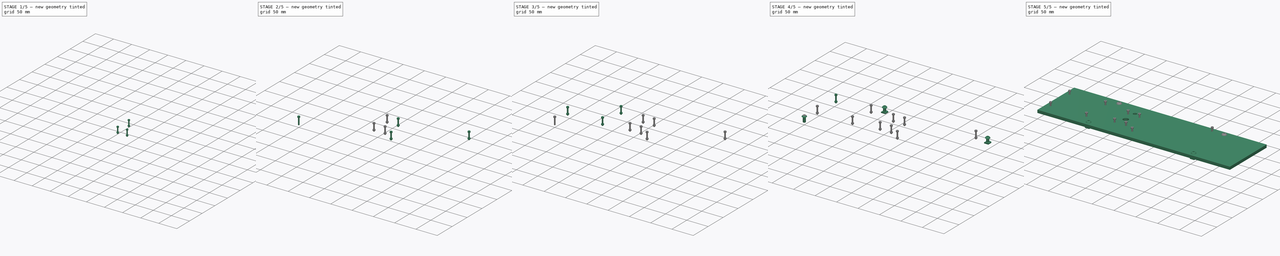
[diagram: build sequence overview — one tinted view per stage of 5, left to right]
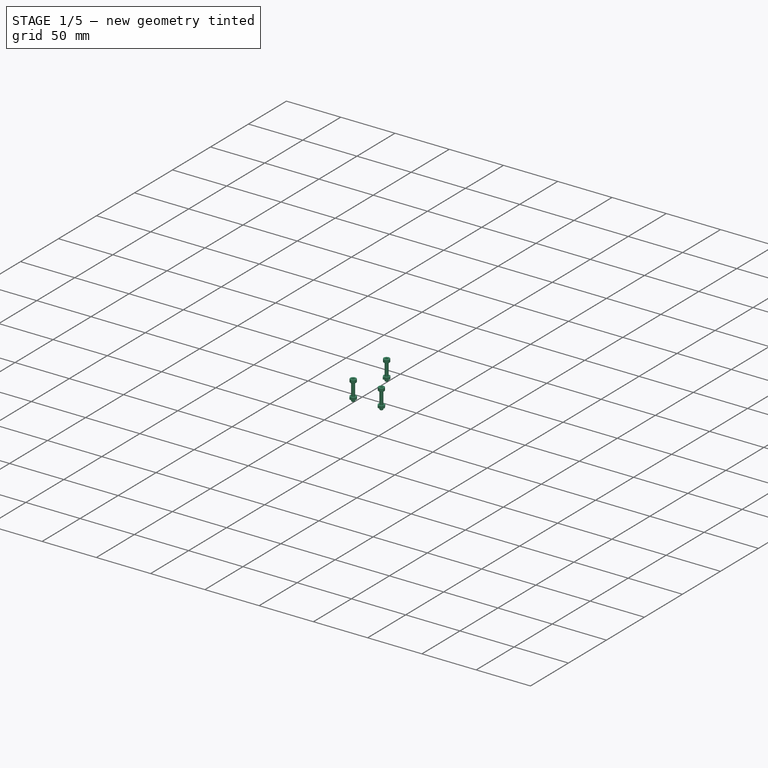
[diagram: stage 1 of 5 — iso view after this stage's code; geometry added in this stage tinted green]
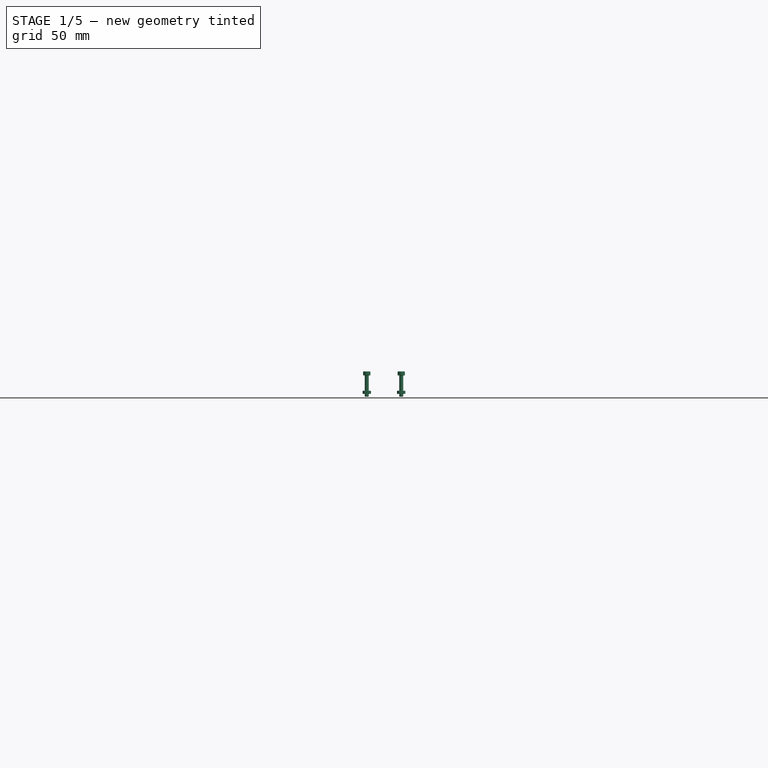
[diagram: stage 1 of 5 — front view after this stage's code; geometry added in this stage tinted green]
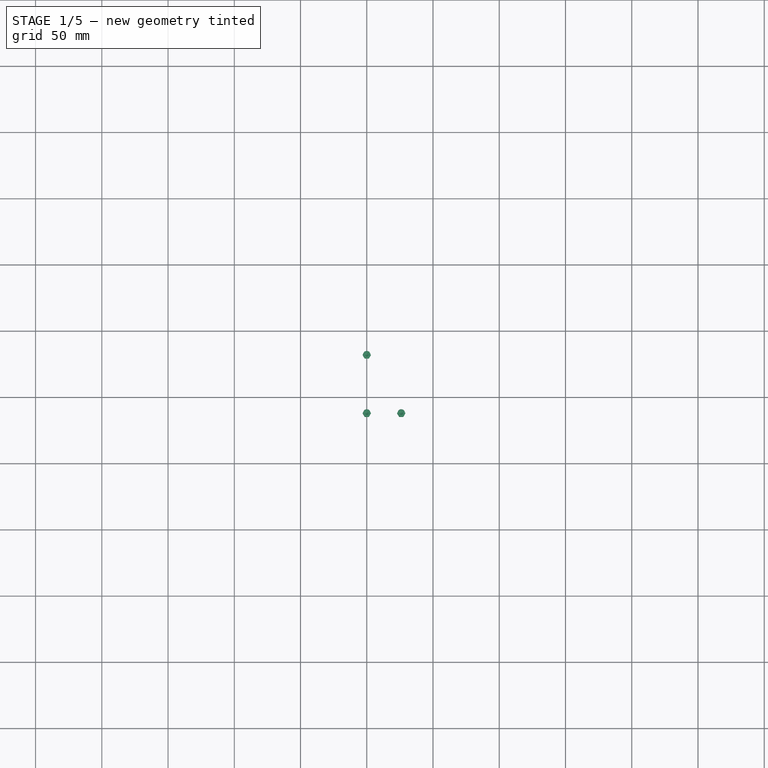
[diagram: stage 1 of 5 — top view after this stage's code; geometry added in this stage tinted green]
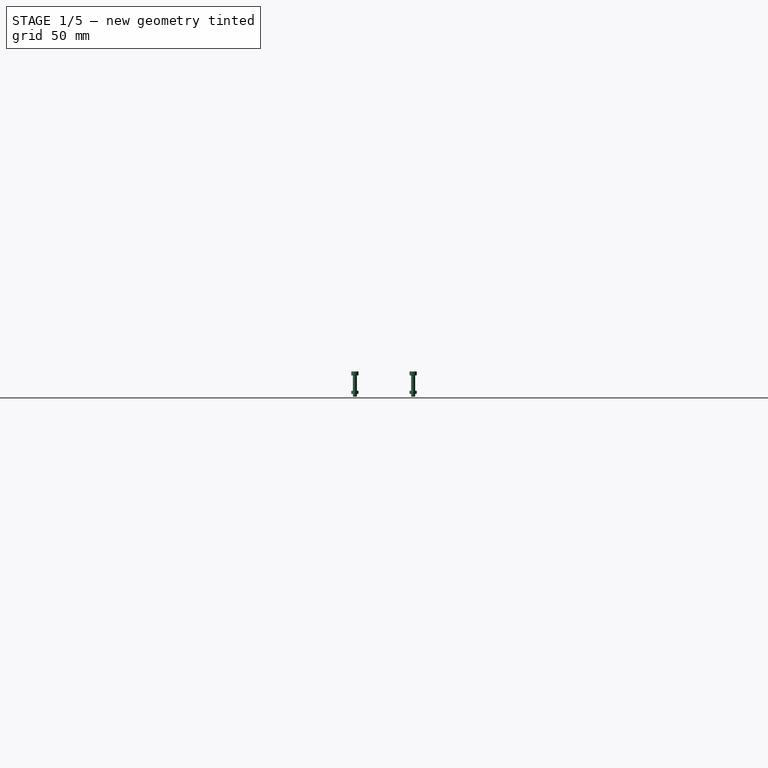
[diagram: stage 1 of 5 — right view after this stage's code; geometry added in this stage tinted green]
FCSTD DOCUMENT  (FreeCAD 0.19R23964 (Git))
Label: ctrlmount2f
License: All rights reserved
LicenseURL: http://en.wikipedia.org/wiki/All_rights_reserved
objects: Part::Feature×19, Part::FeaturePython×14, Part::Compound×14, Sketcher::SketchObject×4, PartDesign::Pocket×3, PartDesign::Pad×1, PartDesign::Body×1
note: 60 computed .brp shape members not serialized (recipe doc carries the construction recipe); baked Part::Feature solids carry a one-line shape summary decoded from their .brp

FEATURE [Part::FeaturePython] Screw011  label="M3x16-Screw007"  # Fasteners workbench fastener (typed FeaturePython)
  diameter = 4
  invert = false
  length = 6
  matchOuter = false
  offset = 0
  thread = false
  type = 15
FEATURE [Part::Feature] Nut008  label="M3-Nut008"
  Placement = pos=(0,0,-14) rot=(0,0,1;0rad)
  shape: bbox 6.351 x 6.351 x 2.4 mm, 25 faces (baked)
FEATURE [Part::Compound] Compound011  label="m3x16cylscrewnut007"
  Links = -> [Screw011,Nut008]
  Placement = pos=(150,82,12) rot=(0,0,1;0rad)
FEATURE [Part::FeaturePython] Screw012  label="M3x16-Screw008"  # Fasteners workbench fastener (typed FeaturePython)
  diameter = 4
  invert = false
  length = 6
  matchOuter = false
  offset = 0
  thread = false
  type = 15
FEATURE [Part::Feature] Nut009  label="M3-Nut009"
  Placement = pos=(0,0,-14) rot=(0,0,1;0rad)
  shape: bbox 6.351 x 6.351 x 2.4 mm, 25 faces (baked)
FEATURE [Part::Compound] Compound012  label="m3x16cylscrewnut008"
  Links = -> [Screw012,Nut009]
  Placement = pos=(150,38,12) rot=(0,0,1;0rad)
FEATURE [Part::FeaturePython] Screw013  label="M3x16-Screw009"  # Fasteners workbench fastener (typed FeaturePython)
  diameter = 4
  invert = false
  length = 6
  matchOuter = false
  offset = 0
  thread = false
  type = 15
FEATURE [Part::Feature] Nut010  label="M3-Nut010"
  Placement = pos=(0,0,-14) rot=(0,0,1;0rad)
  shape: bbox 6.351 x 6.351 x 2.4 mm, 25 faces (baked)
FEATURE [Part::Compound] Compound013  label="m3x16cylscrewnut009"
  Links = -> [Screw013,Nut010]
  Placement = pos=(176,38,12) rot=(0,0,1;0rad)
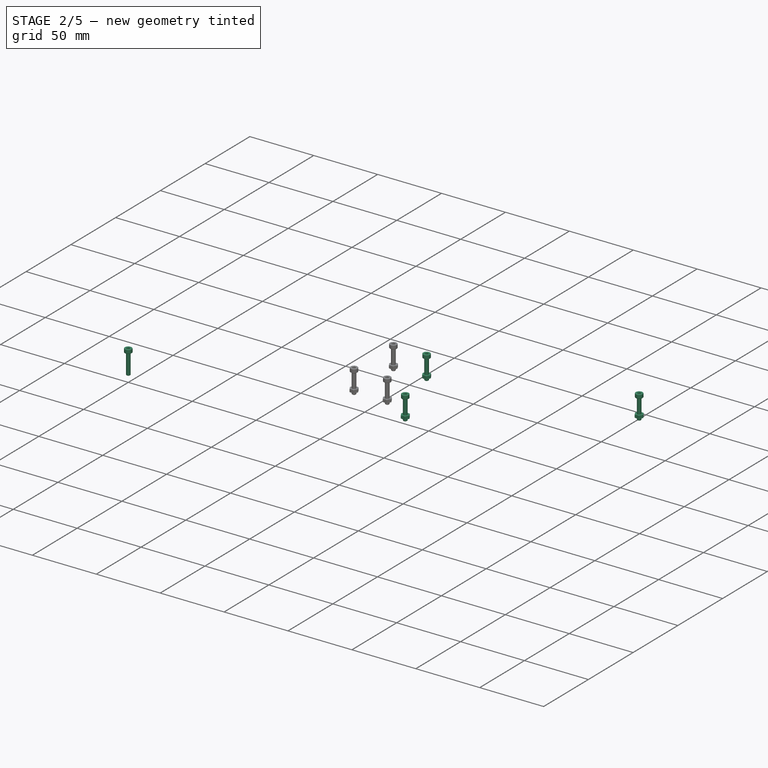
[diagram: stage 2 of 5 — iso view after this stage's code; geometry added in this stage tinted green]
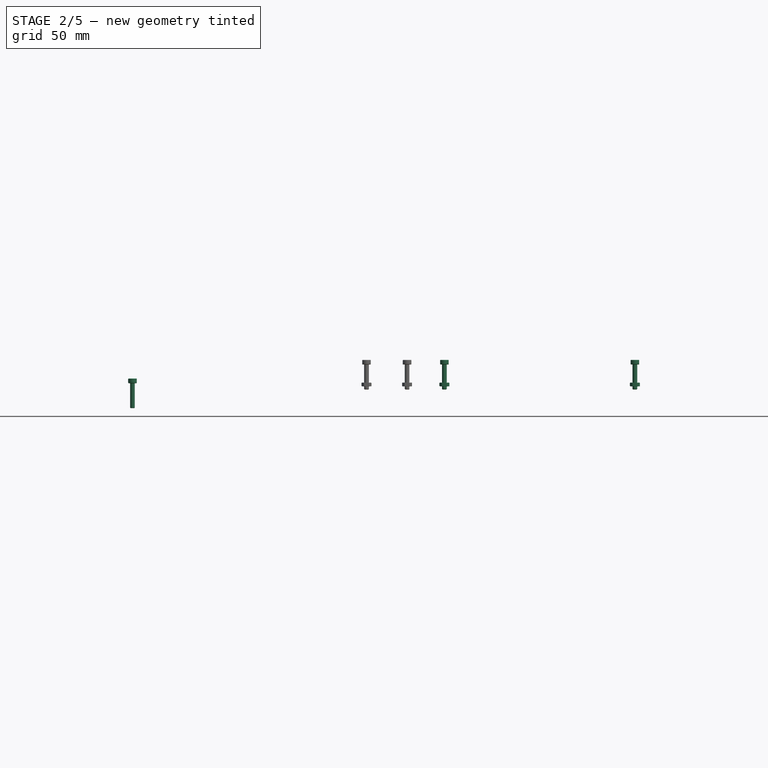
[diagram: stage 2 of 5 — front view after this stage's code; geometry added in this stage tinted green]
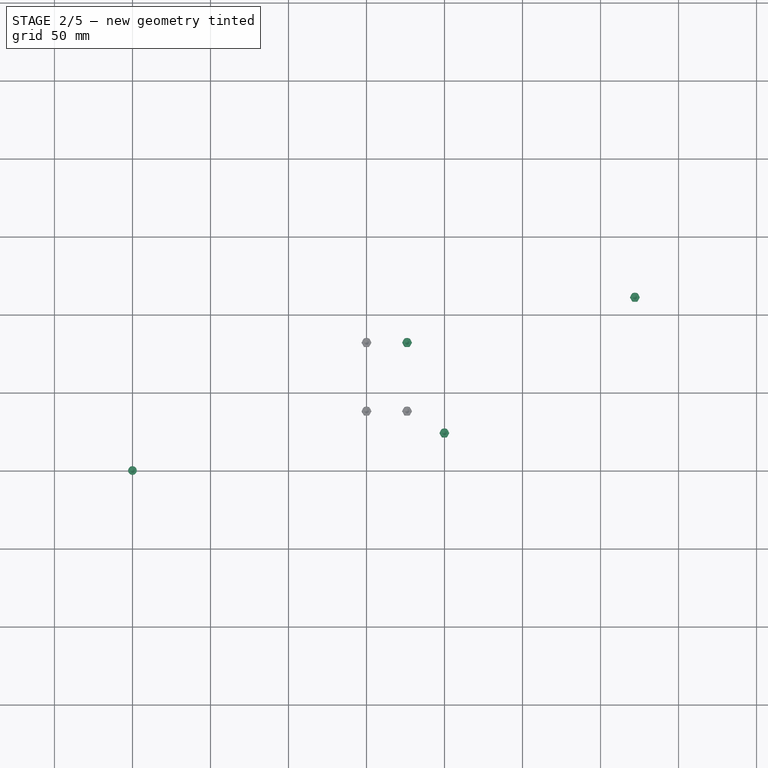
[diagram: stage 2 of 5 — top view after this stage's code; geometry added in this stage tinted green]
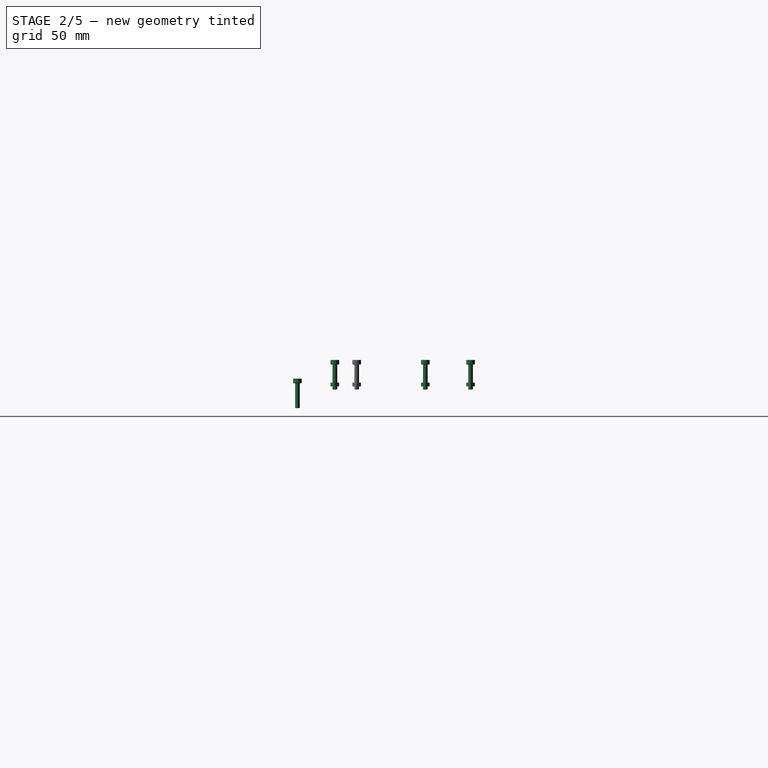
[diagram: stage 2 of 5 — right view after this stage's code; geometry added in this stage tinted green]
FEATURE [Part::FeaturePython] Screw007  label="M3x16-Screw003"  # Fasteners workbench fastener (typed FeaturePython)
  diameter = 4
  invert = false
  length = 6
  matchOuter = false
  offset = 0
  thread = false
  type = 15
FEATURE [Part::Feature] Nut005  label="M3-Nut005"
  Placement = pos=(0,0,-14) rot=(0,0,1;0rad)
  shape: bbox 6.351 x 6.351 x 2.4 mm, 25 faces (baked)
FEATURE [Part::FeaturePython] Screw008  label="M3x16-Screw004"  # Fasteners workbench fastener (typed FeaturePython)
  diameter = 4
  invert = false
  length = 6
  matchOuter = false
  offset = 0
  thread = false
  type = 15
FEATURE [Part::Compound] Compound008  label="m3x16cylscrewnut004"
  Links = -> [Screw008,Nut005]
  Placement = pos=(322,111,12) rot=(0,0,1;0rad)
FEATURE [Part::FeaturePython] Screw009  label="M3x16-Screw005"  # Fasteners workbench fastener (typed FeaturePython)
  diameter = 4
  invert = false
  length = 6
  matchOuter = false
  offset = 0
  thread = false
  type = 15
FEATURE [Part::Feature] Nut006  label="M3-Nut006"
  Placement = pos=(0,0,-14) rot=(0,0,1;0rad)
  shape: bbox 6.351 x 6.351 x 2.4 mm, 25 faces (baked)
FEATURE [Part::Compound] Compound009  label="m3x16cylscrewnut005"
  Links = -> [Screw009,Nut006]
  Placement = pos=(199.9,24,12) rot=(0,0,1;0rad)
FEATURE [Part::FeaturePython] Screw010  label="M3x16-Screw006"  # Fasteners workbench fastener (typed FeaturePython)
  diameter = 4
  invert = false
  length = 6
  matchOuter = false
  offset = 0
  thread = false
  type = 15
FEATURE [Part::Feature] Nut007  label="M3-Nut007"
  Placement = pos=(0,0,-14) rot=(0,0,1;0rad)
  shape: bbox 6.351 x 6.351 x 2.4 mm, 25 faces (baked)
FEATURE [Part::Compound] Compound010  label="m3x16cylscrewnut006"
  Links = -> [Screw010,Nut007]
  Placement = pos=(176,82,12) rot=(0,0,1;0rad)
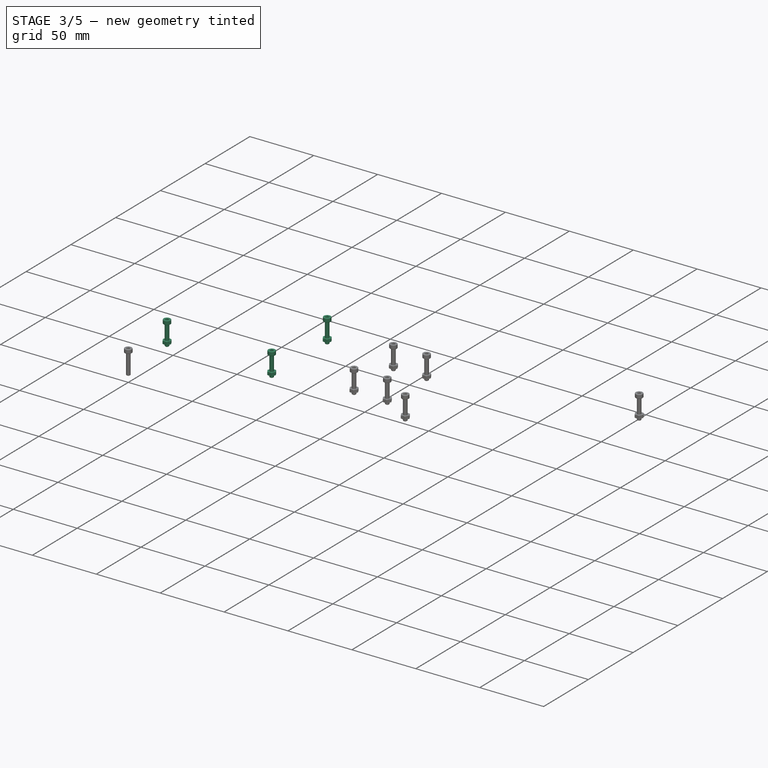
[diagram: stage 3 of 5 — iso view after this stage's code; geometry added in this stage tinted green]
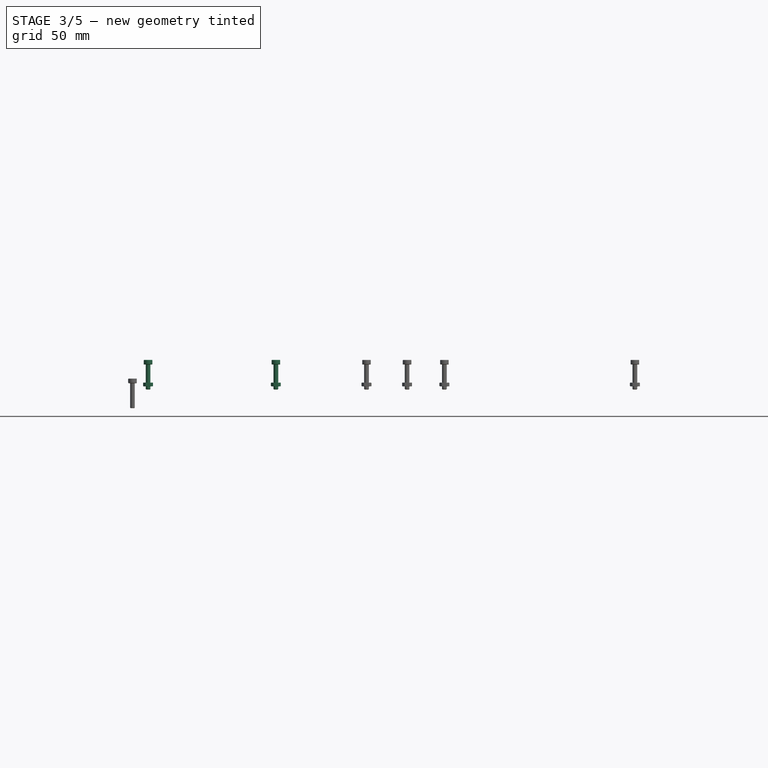
[diagram: stage 3 of 5 — front view after this stage's code; geometry added in this stage tinted green]
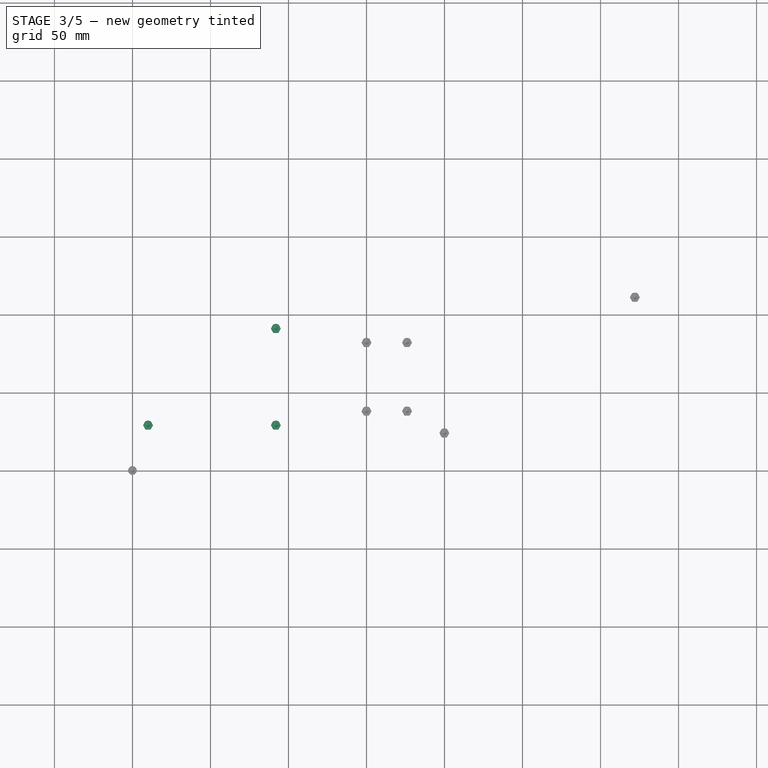
[diagram: stage 3 of 5 — top view after this stage's code; geometry added in this stage tinted green]
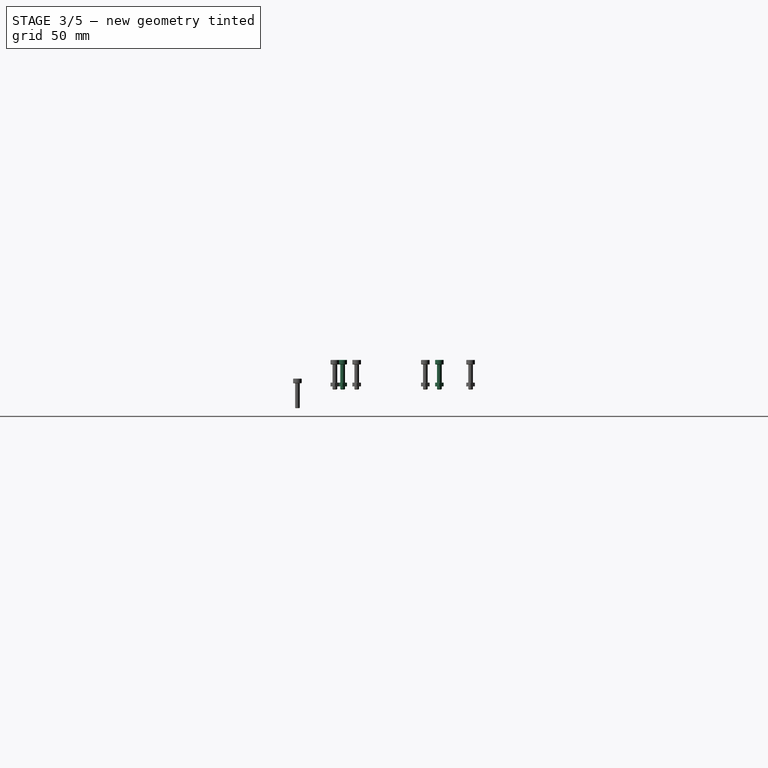
[diagram: stage 3 of 5 — right view after this stage's code; geometry added in this stage tinted green]
FEATURE [Part::Feature] Nut001  label="M3-Nut001"
  Placement = pos=(0,0,-14) rot=(0,0,1;0rad)
  shape: bbox 6.351 x 6.351 x 2.4 mm, 25 faces (baked)
FEATURE [Part::FeaturePython] Screw004  label="M3x16-Screw"  # Fasteners workbench fastener (typed FeaturePython)
  diameter = 4
  invert = false
  length = 6
  matchOuter = false
  offset = 0
  thread = false
  type = 15
FEATURE [Part::FeaturePython] Screw005  label="M3x16-Screw001"  # Fasteners workbench fastener (typed FeaturePython)
  diameter = 4
  invert = false
  length = 6
  matchOuter = false
  offset = 0
  thread = false
  type = 15
FEATURE [Part::Feature] Nut002  label="M3-Nut002"
  Placement = pos=(0,0,-14) rot=(0,0,1;0rad)
  shape: bbox 6.351 x 6.351 x 2.4 mm, 25 faces (baked)
FEATURE [Part::Compound] Compound005  label="m3x16cylscrewnut001"
  Links = -> [Screw005,Nut002]
  Placement = pos=(91.9,91,12) rot=(0,0,1;0rad)
FEATURE [Part::Feature] Nut003  label="M3-Nut003"
  Placement = pos=(0,0,-14) rot=(0,0,1;0rad)
  shape: bbox 6.351 x 6.351 x 2.4 mm, 25 faces (baked)
FEATURE [Part::FeaturePython] Screw006  label="M3x16-Screw002"  # Fasteners workbench fastener (typed FeaturePython)
  diameter = 4
  invert = false
  length = 6
  matchOuter = false
  offset = 0
  thread = false
  type = 15
FEATURE [Part::Compound] Compound006  label="m3x16cylscrewnut002"
  Links = -> [Screw006,Nut003]
  Placement = pos=(91.9,29,12) rot=(0,0,1;0rad)
FEATURE [Part::Feature] Nut004  label="M3-Nut004"
  Placement = pos=(0,0,-14) rot=(0,0,1;0rad)
  shape: bbox 6.351 x 6.351 x 2.4 mm, 25 faces (baked)
FEATURE [Part::Compound] Compound007  label="m3x16cylscrewnut003"
  Links = -> [Screw007,Nut004]
  Placement = pos=(10,29,12) rot=(0,0,1;0rad)
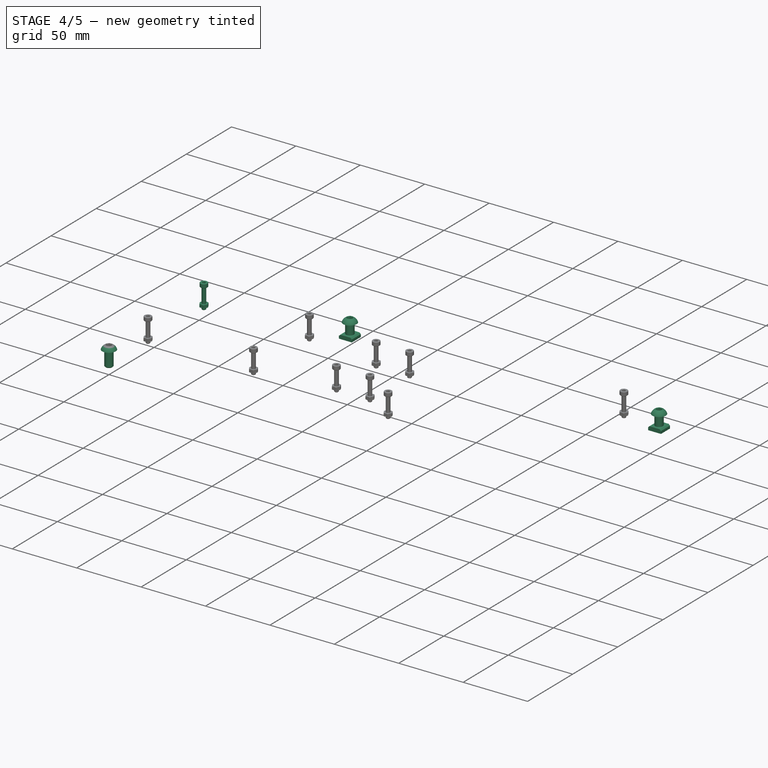
[diagram: stage 4 of 5 — iso view after this stage's code; geometry added in this stage tinted green]
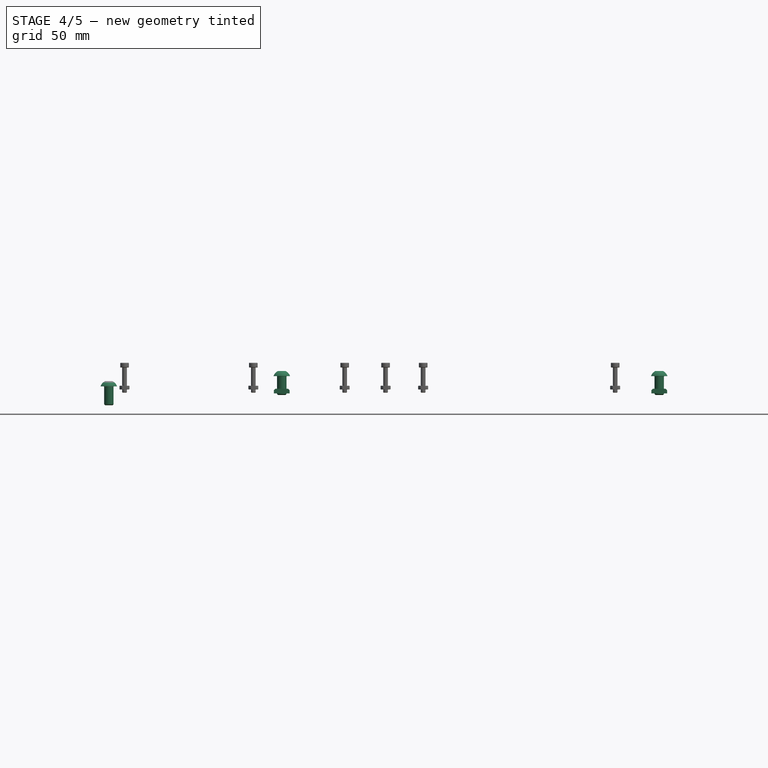
[diagram: stage 4 of 5 — front view after this stage's code; geometry added in this stage tinted green]
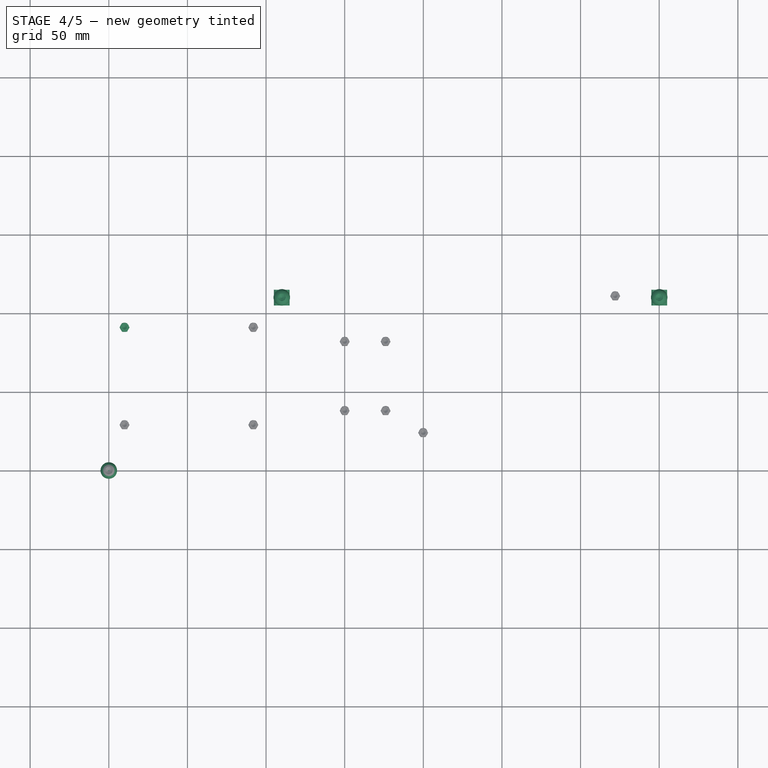
[diagram: stage 4 of 5 — top view after this stage's code; geometry added in this stage tinted green]
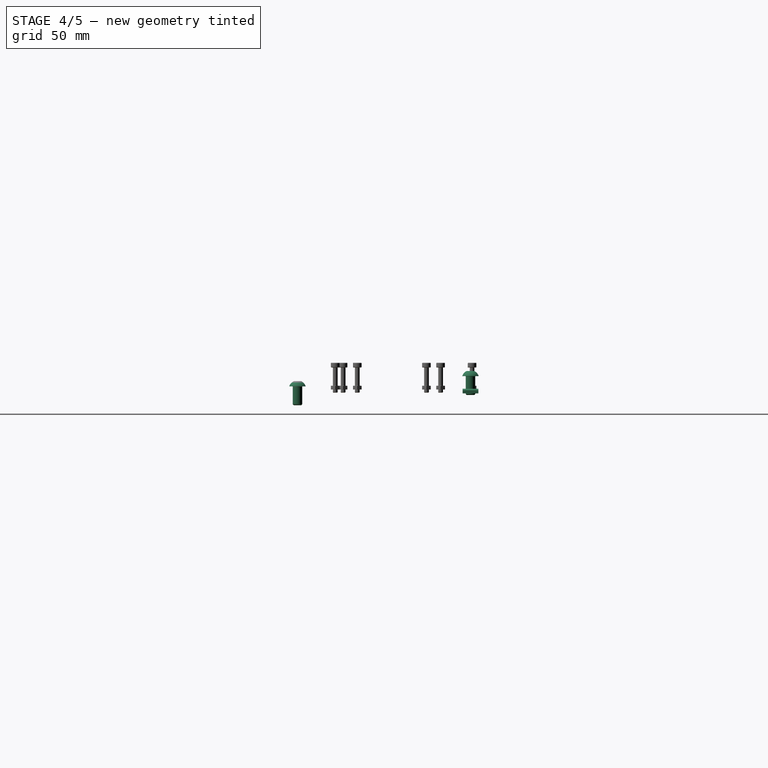
[diagram: stage 4 of 5 — right view after this stage's code; geometry added in this stage tinted green]
FEATURE [PartDesign::Body] Body
  Group = -> [Sketch,Pad,Sketch001,Pocket,Sketch002,Pocket001,Sketch003,Pocket002]
  Origin = -> Origin
  Tip = -> Pocket002
FEATURE [Part::Feature] Feature001  label="nano shield002"
  Placement = pos=(34,80,4.65) rot=(0,0.707107,0.707107;3.14159rad)
  shape: bbox 71.67 x 58.17 x 25.52 mm, 4898 faces, 174 solids (baked)
FEATURE [Part::Feature] Fillet001  label="revctrl"
  Placement = pos=(147,35,9.2) rot=(0,0,1;0rad)
  shape: bbox 32 x 68 x 15.79 mm, 53 faces (baked)
FEATURE [Part::Feature] Pad001  label="ks0288"
  Placement = pos=(5.8,25.9,10) rot=(0,0,1;0rad)
  shape: bbox 90.4 x 70.5 x 1.7 mm, 10 faces (baked)
FEATURE [Part::Feature] Pad002  label="ps500wspindel_51"
  Placement = pos=(194.85,16.75,6.5) rot=(0,0,1;0rad)
  shape: bbox 130 x 98 x 51 mm, 8 faces (baked)
FEATURE [Part::Feature] Pad003  label="ps500wspindel_1.5"
  Placement = pos=(194.85,16.75,6.5) rot=(0,0,1;0rad)
  shape: bbox 130 x 98 x 1.5 mm, 8 faces (baked)
FEATURE [Part::Feature] Body004  label="M6nutplate003"
  Placement = pos=(-5,-5,-11) rot=(0,0,1;0rad)
  shape: bbox 10 x 10 x 3 mm, 9 faces (baked)
FEATURE [Part::FeaturePython] Screw001  label="M6x12-Screw001"  # Fasteners workbench fastener (typed FeaturePython)
  diameter = 4
  invert = false
  length = 1
  matchOuter = false
  offset = 0
  thread = false
  type = 20
FEATURE [Part::FeaturePython] Screw002  label="M6x12-Screw002"  # Fasteners workbench fastener (typed FeaturePython)
  diameter = 4
  invert = false
  length = 1
  matchOuter = false
  offset = 0
  thread = false
  type = 20
FEATURE [Part::FeaturePython] Screw003  label="M6x12-Screw003"  # Fasteners workbench fastener (typed FeaturePython)
  diameter = 4
  invert = false
  length = 1
  matchOuter = false
  offset = 0
  thread = false
  type = 20
FEATURE [Part::Feature] Body003  label="M6nutplate002"
  Placement = pos=(-5,-5,-11) rot=(0,0,1;0rad)
  shape: bbox 10 x 10 x 3 mm, 9 faces (baked)
FEATURE [Part::Feature] Body002  label="M6nutplate001"
  Placement = pos=(-5,-5,-11) rot=(0,0,1;0rad)
  shape: bbox 10 x 10 x 3 mm, 9 faces (baked)
FEATURE [Part::Feature] Body001  label="M6nutplate"
  Placement = pos=(-5,-5,-11) rot=(0,0,1;0rad)
  shape: bbox 10 x 10 x 3 mm, 9 faces (baked)
FEATURE [Part::Compound] Compound002  label="m6x12screwnut002"
  Links = -> [Screw002,Body003]
  Placement = pos=(350,110,6.5) rot=(0,0,1;0rad)
FEATURE [Part::FeaturePython] Screw  label="M6x12-Screw"  # Fasteners workbench fastener (typed FeaturePython)
  diameter = 4
  invert = false
  length = 1
  matchOuter = false
  offset = 0
  thread = false
  type = 20
FEATURE [Part::Compound] Compound001  label="m6x12screwnut001"
  Links = -> [Screw001,Body002]
  Placement = pos=(110,110,6.5) rot=(0,0,1;0rad)
FEATURE [Part::Compound] Compound004  label="m3x16cylscrewnut"
  Links = -> [Screw004,Nut001]
  Placement = pos=(10,91,12) rot=(0,0,1;0rad)
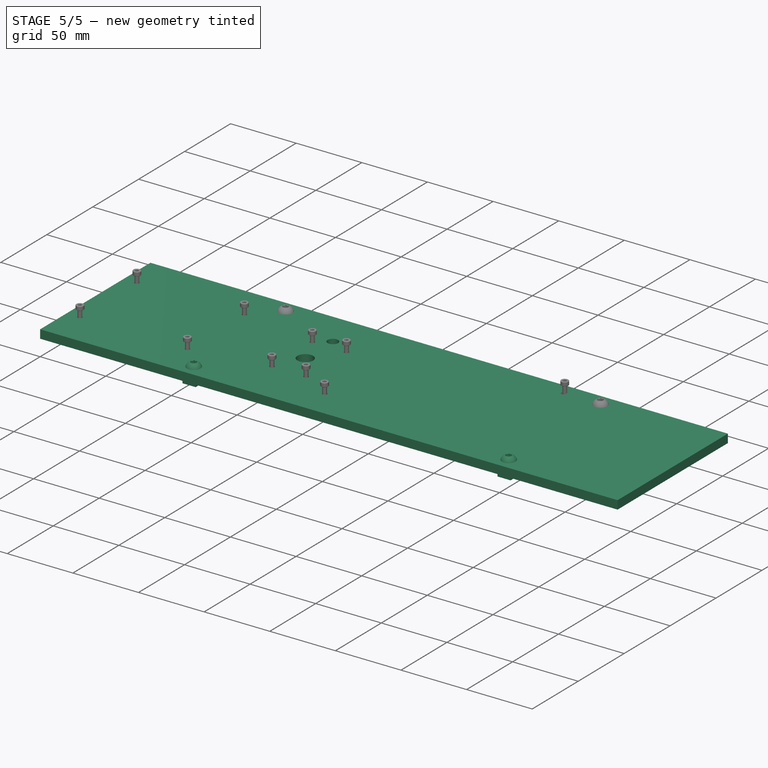
[diagram: stage 5 of 5 — iso view after this stage's code; geometry added in this stage tinted green]
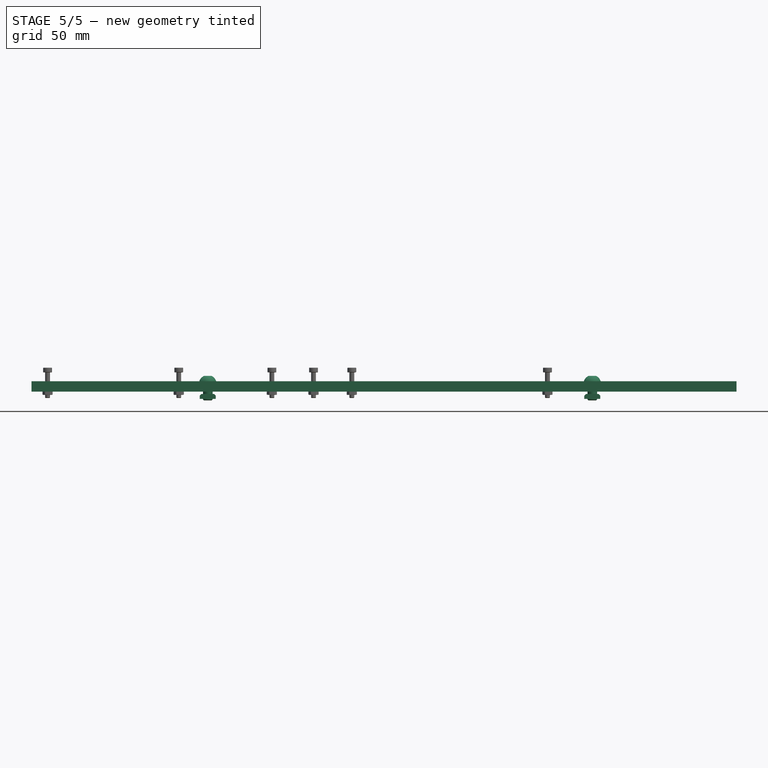
[diagram: stage 5 of 5 — front view after this stage's code; geometry added in this stage tinted green]
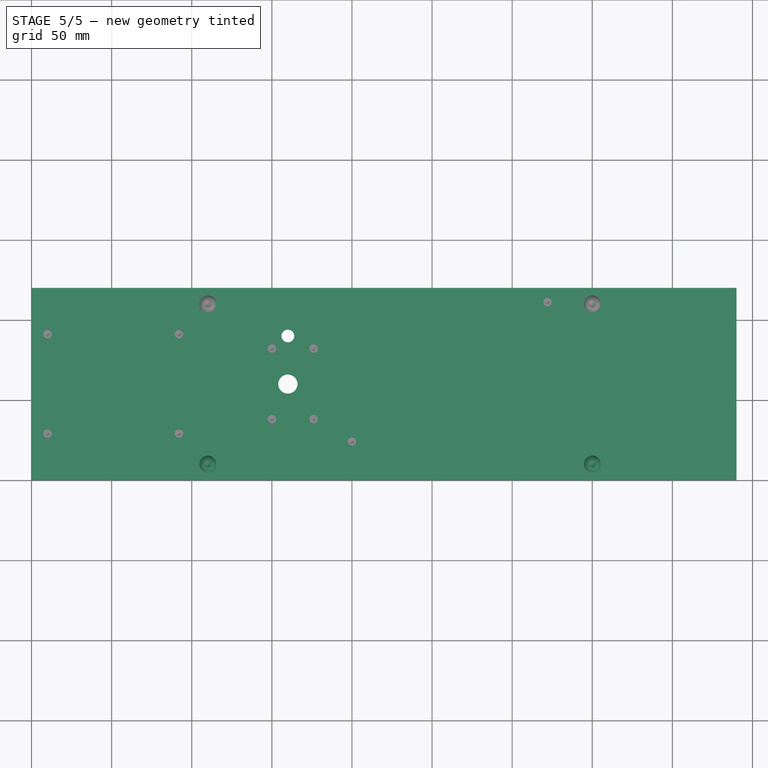
[diagram: stage 5 of 5 — top view after this stage's code; geometry added in this stage tinted green]
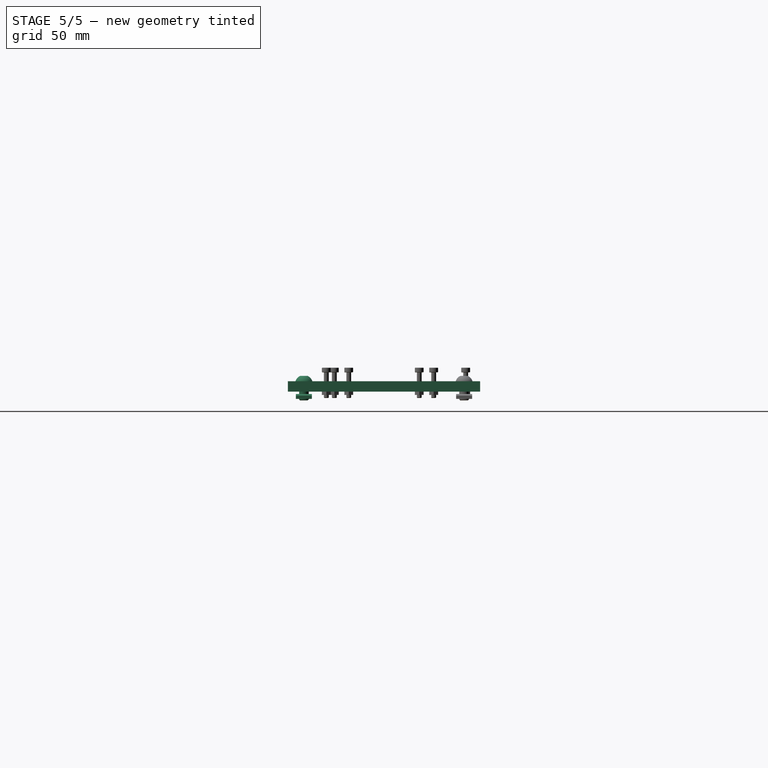
[diagram: stage 5 of 5 — right view after this stage's code; geometry added in this stage tinted green]
FEATURE [Sketcher::SketchObject] Sketch  label="sketch_panelmount"
  FullyConstrained = true
  MapMode = 5
  Support = -> [XY_Plane]
  sketch-geometry (8):
    g0: LineSegment StartX=0 StartY=120 StartZ=0 EndX=440 EndY=120 EndZ=0
    g1: LineSegment StartX=440 StartY=120 StartZ=0 EndX=440 EndY=0 EndZ=0
    g2: LineSegment StartX=440 StartY=0 StartZ=0 EndX=0 EndY=0 EndZ=0
    g3: LineSegment StartX=0 StartY=0 StartZ=0 EndX=0 EndY=120 EndZ=0
    g4: Circle CenterX=110 CenterY=110 CenterZ=0 NormalX=0 NormalY=0 NormalZ=1 AngleXU=0 Radius=3.3
    g5: Circle CenterX=110 CenterY=10 CenterZ=0 NormalX=0 NormalY=0 NormalZ=1 AngleXU=0 Radius=3.3
    g6: Circle CenterX=350 CenterY=110 CenterZ=0 NormalX=0 NormalY=0 NormalZ=1 AngleXU=0 Radius=3.3
    g7: Circle CenterX=350 CenterY=10 CenterZ=0 NormalX=0 NormalY=0 NormalZ=1 AngleXU=0 Radius=3.3
  constraints (23):
    c: Coincident(g0,g1)
    c: Coincident(g1,g2)
    c: Coincident(g2,g3)
    c: Coincident(g3,g0)
    c: Horizontal(g0)
    c: Horizontal(g2)
    c: Vertical(g1)
    c: Vertical(g3)
    c: Coincident(g2,g-1)
    c: DistanceX(g0,g0) = 440
    c: DistanceY(g3,g3) = 120
    c: DistanceY(g2,g5) = 10
    c: DistanceX(g5,g4) = 0
    c: DistanceY(g5,g4) = 100
    c: DistanceY(g6,g4) = 0
    c: DistanceY(g5,g7) = 0
    c: DistanceX(g6,g7) = 0
    c: DistanceX(g6,g0) = 90
    c: Radius(g4) = 3.3
    c: Equal(g4,g5)
    c: Equal(g4,g7)
    c: Equal(g4,g6)
    c: DistanceX(g2,g5) = 110
FEATURE [PartDesign::Pad] Pad
  Direction = (1,1,1)
  Length = 6.5
  Length2 = 100
  Profile = -> Sketch
  Type = 0
FEATURE [Sketcher::SketchObject] Sketch001  label="Sketch001_ks0288"
  FullyConstrained = true
  MapMode = 5
  Placement = pos=(0,0,6.5) rot=(0,0,1;0rad)
  Support = -> [Pad]
  sketch-geometry (4):
    g0: Circle CenterX=10 CenterY=91 CenterZ=0 NormalX=0 NormalY=0 NormalZ=1 AngleXU=0 Radius=1.75
    g1: Circle CenterX=91.9 CenterY=91 CenterZ=0 NormalX=0 NormalY=0 NormalZ=1 AngleXU=0 Radius=1.75
    g2: Circle CenterX=10 CenterY=29 CenterZ=0 NormalX=0 NormalY=0 NormalZ=1 AngleXU=0 Radius=1.75
    g3: Circle CenterX=91.9 CenterY=29 CenterZ=0 NormalX=0 NormalY=0 NormalZ=1 AngleXU=0 Radius=1.75
  constraints (12):
    c: DistanceX(g-1,g2) = 10
    c: DistanceY(g-1,g2) = 29
    c: DistanceX(g2,g0) = 0
    c: DistanceY(g2,g0) = 62
    c: DistanceX(g0,g1) = 81.9
    c: DistanceY(g1,g0) = 0
    c: DistanceX(g1,g3) = 0
    c: DistanceY(g2,g3) = 0
    c: Radius(g2) = 1.75
    c: Equal(g2,g0)
    c: Equal(g2,g1)
    c: Equal(g2,g3)
FEATURE [PartDesign::Pocket] Pocket
  BaseFeature = -> Pad
  Length = 7
  Length2 = 100
  Profile = -> Sketch001
  Type = 0
FEATURE [Sketcher::SketchObject] Sketch002  label="_revctrl_60w"
  FullyConstrained = true
  MapMode = 5
  Placement = pos=(0,0,6.5) rot=(0,0,1;0rad)
  Support = -> [Pocket]
  sketch-geometry (4):
    g0: Circle CenterX=150 CenterY=82 CenterZ=0 NormalX=0 NormalY=0 NormalZ=1 AngleXU=0 Radius=1.75
    g1: Circle CenterX=176 CenterY=82 CenterZ=0 NormalX=0 NormalY=0 NormalZ=1 AngleXU=0 Radius=1.75
    g2: Circle CenterX=150 CenterY=38 CenterZ=0 NormalX=0 NormalY=0 NormalZ=1 AngleXU=0 Radius=1.75
    g3: Circle CenterX=176 CenterY=38 CenterZ=0 NormalX=0 NormalY=0 NormalZ=1 AngleXU=0 Radius=1.75
  constraints (12):
    c: DistanceX(g-1,g2) = 150
    c: DistanceY(g-1,g2) = 38
    c: DistanceY(g2,g3) = 0
    c: DistanceX(g2,g3) = 26
    c: DistanceY(g2,g0) = 44
    c: DistanceX(g2,g0) = 0
    c: DistanceY(g0,g1) = 0
    c: DistanceX(g3,g1) = 0
    c: Radius(g0) = 1.75
    c: Equal(g0,g1)
    c: Equal(g0,g3)
    c: Equal(g0,g2)
FEATURE [PartDesign::Pocket] Pocket001
  BaseFeature = -> Pocket
  Length = 7
  Length2 = 100
  Profile = -> Sketch002
  Type = 0
FEATURE [Sketcher::SketchObject] Sketch003  label="sketch_ps500w"
  FullyConstrained = true
  MapMode = 5
  Placement = pos=(0,0,6.5) rot=(0,0,1;0rad)
  Support = -> [Pocket001]
  sketch-geometry (4):
    g0: Circle CenterX=200 CenterY=24 CenterZ=0 NormalX=0 NormalY=0 NormalZ=1 AngleXU=0 Radius=1.75
    g1: Circle CenterX=321.85 CenterY=110 CenterZ=0 NormalX=0 NormalY=0 NormalZ=1 AngleXU=0 Radius=1.75
    g2: Circle CenterX=160 CenterY=60 CenterZ=0 NormalX=0 NormalY=0 NormalZ=1 AngleXU=0 Radius=6
    g3: Circle CenterX=160 CenterY=90 CenterZ=0 NormalX=0 NormalY=0 NormalZ=1 AngleXU=0 Radius=4
  constraints (12):
    c: DistanceY(g-1,g1) = 110
    c: DistanceX(g0,g1) = 121.85
    c: DistanceY(g0,g1) = 86
    c: DistanceX(g-1,g0) = 200
    c: Radius(g0) = 1.75
    c: Equal(g0,g1)
    c: DistanceY(g-1,g2) = 60
    c: DistanceX(g-1,g2) = 160
    c: Radius(g2) = 6
    c: DistanceX(g3,g2) = 0
    c: DistanceY(g2,g3) = 30
    c: Radius(g3) = 4
FEATURE [PartDesign::Pocket] Pocket002
  BaseFeature = -> Pocket001
  Length = 7
  Length2 = 100
  Profile = -> Sketch003
  Type = 0
FEATURE [Part::Compound] Compound003  label="m6x12screwnut003"
  Links = -> [Screw003,Body004]
  Placement = pos=(350,10,6.5) rot=(0,0,1;0rad)
FEATURE [Part::Compound] Compound  label="m6x12screwnut"
  Links = -> [Screw,Body001]
  Placement = pos=(110,10,6.5) rot=(0,0,1;0rad)
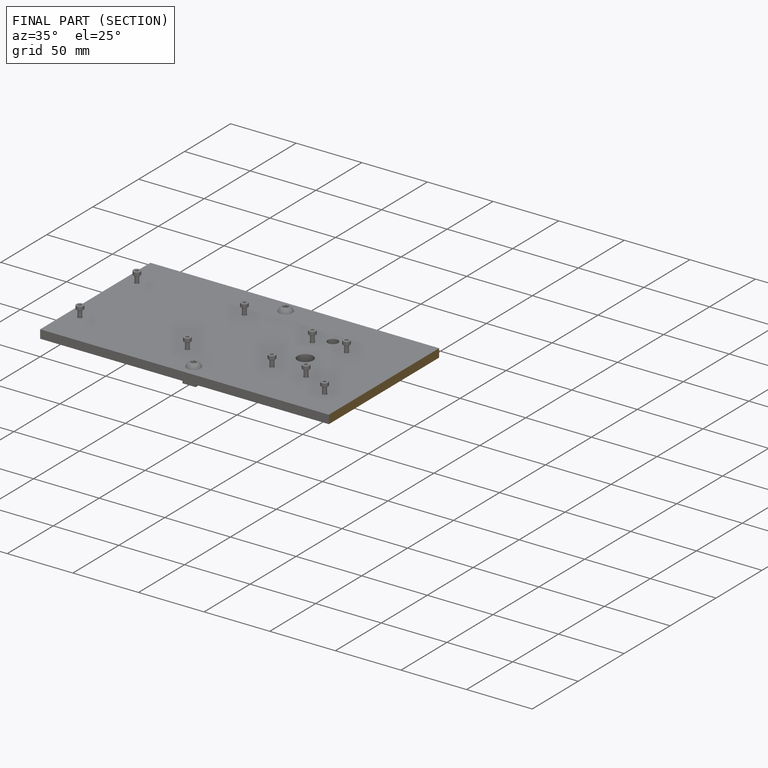
[diagram: finished part — half-section view (interior)]
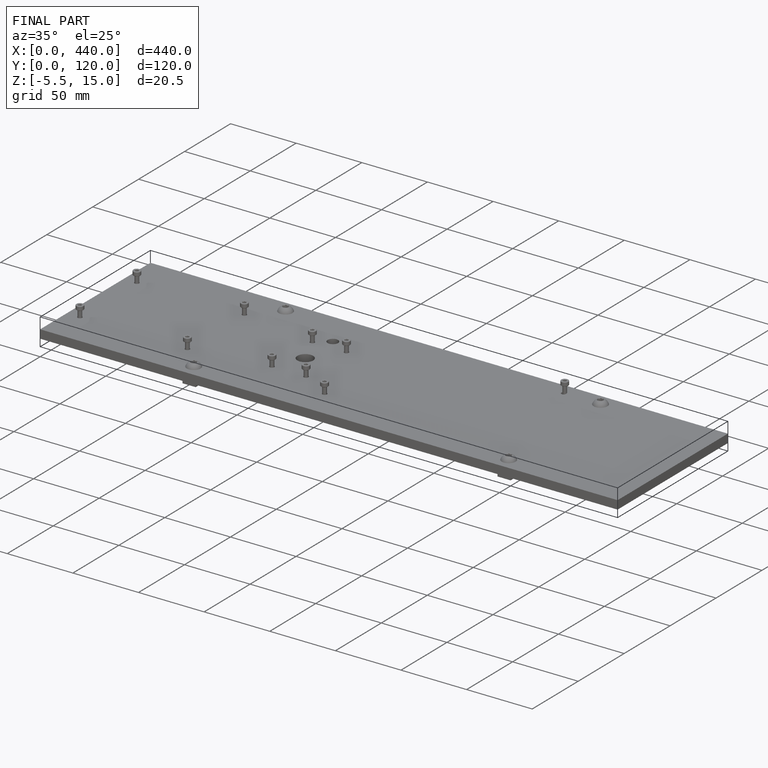
[diagram: finished part — iso view with bounding-box wireframe]
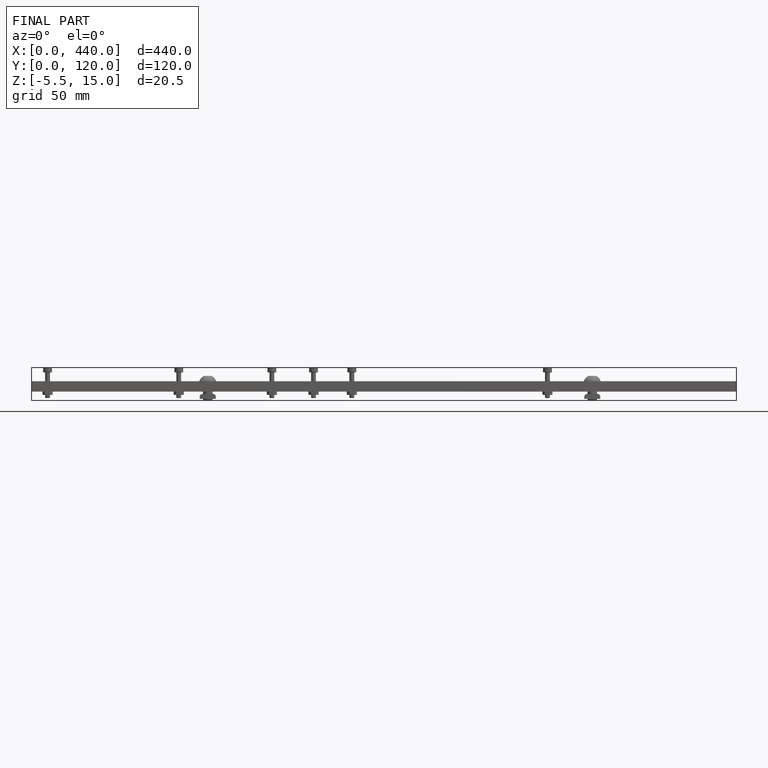
[diagram: finished part — front view with bounding-box wireframe]
